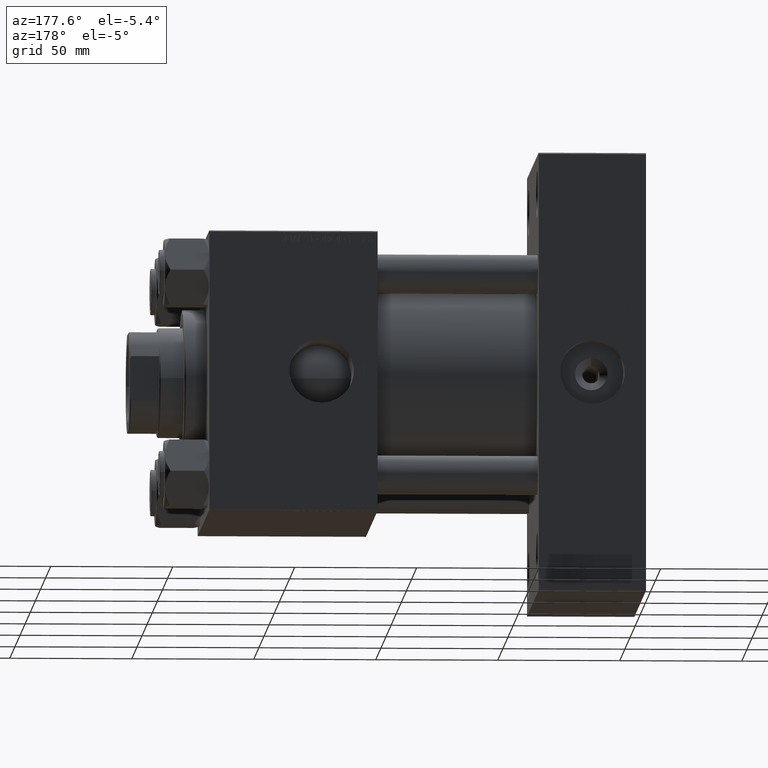
[diagram: clean part render]
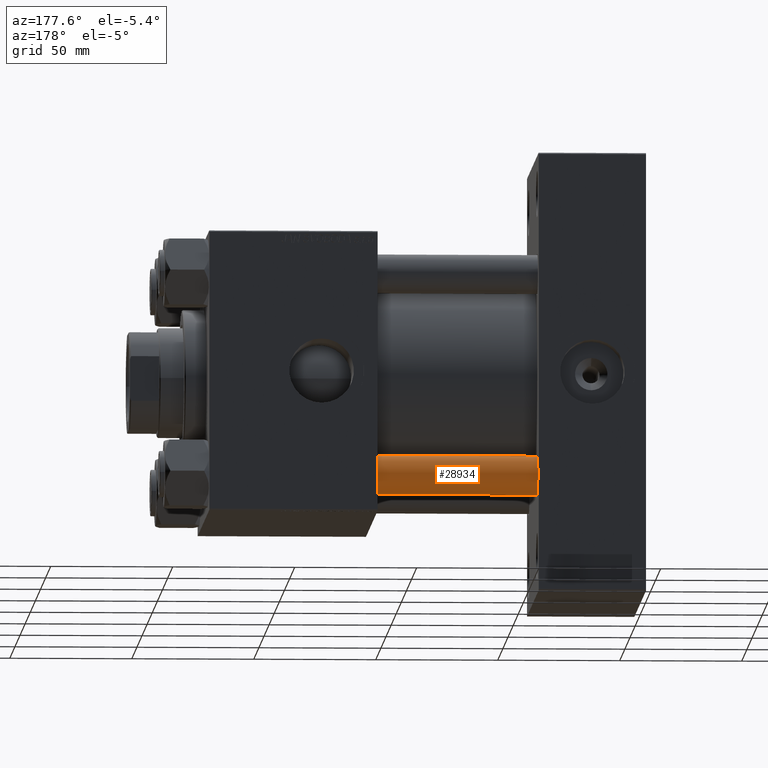
[diagram: same view with one face highlighted and labeled with its STEP entity id]
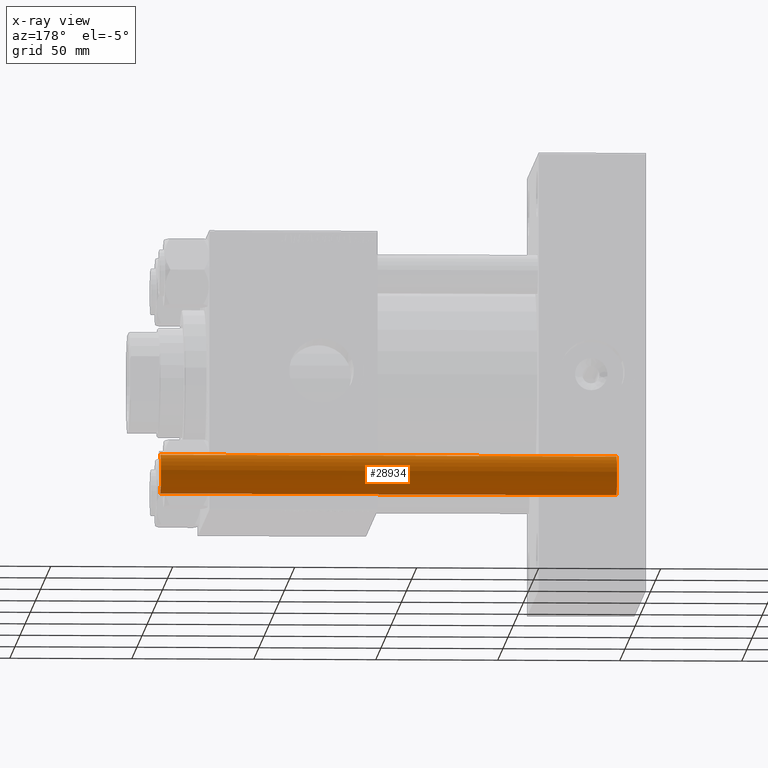
[diagram: x-ray of the same camera — body ghosted, the highlighted face saturated]
A machine part, auxiliary view. The second image highlights one B-rep face of the part: STEP entity #28934.
The next image is the same camera in x-ray: the body ghosted, the highlighted face saturated — about 0% of this face is hidden behind the body in this view.
In plain terms, the highlighted cylindrical surface (edge-blend (fillet) strip) has radius 8 mm, axis along (-1, 0, 0).
Its self-contained STEP definition (entity closure, byte-faithful):
#130 = ORIENTED_EDGE ( 'NONE', *, *, #4145, .T. ) ;
#4145 = EDGE_CURVE ( 'NONE', #45162, #9964, #17743, .T. ) ;
#5647 = DIRECTION ( 'NONE',  ( 1.000000000000000000, 0.000000000000000000, 0.000000000000000000 ) ) ;
#6391 = CARTESIAN_POINT ( 'NONE',  ( 8.000000000000000000, 9.797174393178825657E-16, 188.0000000000000000 ) ) ;
#7122 = VERTEX_POINT ( 'NONE', #28013 ) ;
#7181 = DIRECTION ( 'NONE',  ( -0.000000000000000000, -0.000000000000000000, -1.000000000000000000 ) ) ;
#9459 = CARTESIAN_POINT ( 'NONE',  ( 0.000000000000000000, 0.000000000000000000, 187.5000000000000284 ) ) ;
#9964 = VERTEX_POINT ( 'NONE', #25386 ) ;
#10960 = DIRECTION ( 'NONE',  ( -0.000000000000000000, -0.000000000000000000, -1.000000000000000000 ) ) ;
#11536 = EDGE_CURVE ( 'NONE', #26799, #7122, #31761, .T. ) ;
#15608 = CARTESIAN_POINT ( 'NONE',  ( -8.000000000000000000, 0.000000000000000000, 0.5000000000000004441 ) ) ;
#15812 = EDGE_CURVE ( 'NONE', #9964, #26799, #37391, .T. ) ;
#16561 = DIRECTION ( 'NONE',  ( -0.000000000000000000, -0.000000000000000000, 1.000000000000000000 ) ) ;
#17615 = DIRECTION ( 'NONE',  ( 0.000000000000000000, 0.000000000000000000, -1.000000000000000000 ) ) ;
#17743 = CIRCLE ( 'NONE', #46231, 8.000000000000000000 ) ;
#17815 = ORIENTED_EDGE ( 'NONE', *, *, #23286, .F. ) ;
#22714 = DIRECTION ( 'NONE',  ( -1.000000000000000000, 0.000000000000000000, 0.000000000000000000 ) ) ;
#23286 = EDGE_CURVE ( 'NONE', #45162, #7122, #49466, .T. ) ;
#25386 = CARTESIAN_POINT ( 'NONE',  ( -8.000000000000000000, 0.000000000000000000, 187.5000000000000284 ) ) ;
#25657 = CARTESIAN_POINT ( 'NONE',  ( -8.000000000000000000, 0.000000000000000000, 188.0000000000000000 ) ) ;
#26799 = VERTEX_POINT ( 'NONE', #15608 ) ;
#28013 = CARTESIAN_POINT ( 'NONE',  ( 8.000000000000000000, 9.797174393178825657E-16, 0.5000000000000004441 ) ) ;
#28934 = ADVANCED_FACE ( 'NONE', ( #50252 ), #38752, .T. ) ;
#31258 = ORIENTED_EDGE ( 'NONE', *, *, #15812, .T. ) ;
#31761 = CIRCLE ( 'NONE', #33391, 8.000000000000000000 ) ;
#33111 = CARTESIAN_POINT ( 'NONE',  ( 8.000000000000000000, 9.797174393178825657E-16, 187.5000000000000284 ) ) ;
#33391 = AXIS2_PLACEMENT_3D ( 'NONE', #43850, #16561, #43596 ) ;
#33672 = VECTOR ( 'NONE', #10960, 1000.000000000000000 ) ;
#34429 = CARTESIAN_POINT ( 'NONE',  ( 0.000000000000000000, 0.000000000000000000, 188.0000000000000000 ) ) ;
#34608 = ORIENTED_EDGE ( 'NONE', *, *, #11536, .T. ) ;
#35681 = EDGE_LOOP ( 'NONE', ( #17815, #130, #31258, #34608 ) ) ;
#37391 = LINE ( 'NONE', #25657, #40901 ) ;
#38752 = CYLINDRICAL_SURFACE ( 'NONE', #39576, 8.000000000000000000 ) ;
#39576 = AXIS2_PLACEMENT_3D ( 'NONE', #34429, #7181, #22714 ) ;
#40901 = VECTOR ( 'NONE', #41715, 1000.000000000000000 ) ;
#41715 = DIRECTION ( 'NONE',  ( -0.000000000000000000, -0.000000000000000000, -1.000000000000000000 ) ) ;
#43596 = DIRECTION ( 'NONE',  ( 1.000000000000000000, 0.000000000000000000, 0.000000000000000000 ) ) ;
#43850 = CARTESIAN_POINT ( 'NONE',  ( 0.000000000000000000, 0.000000000000000000, 0.5000000000000004441 ) ) ;
#45162 = VERTEX_POINT ( 'NONE', #33111 ) ;
#46231 = AXIS2_PLACEMENT_3D ( 'NONE', #9459, #17615, #5647 ) ;
#49466 = LINE ( 'NONE', #6391, #33672 ) ;
#50252 = FACE_OUTER_BOUND ( 'NONE', #35681, .T. ) ;